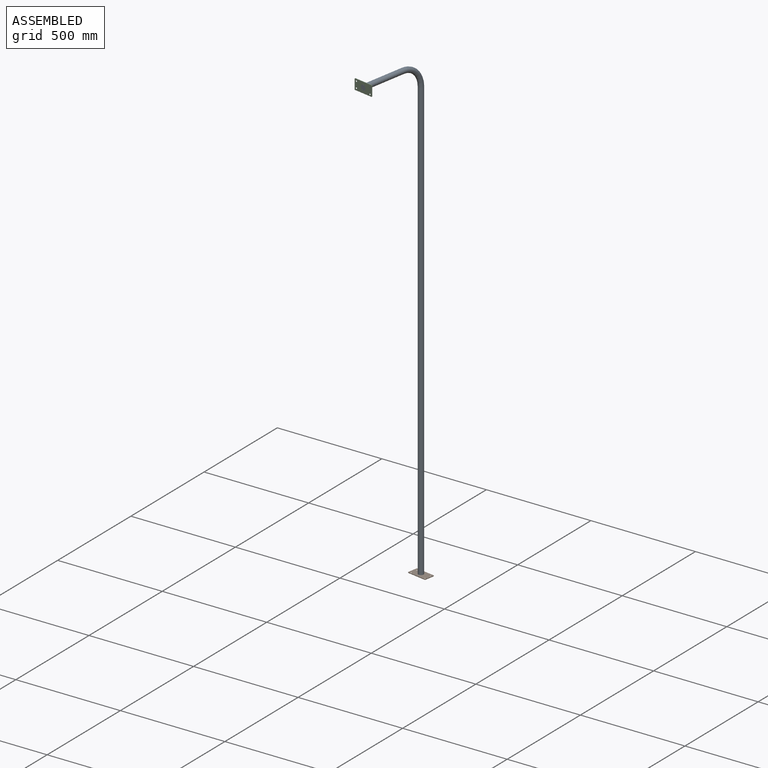
[diagram: assembled view]
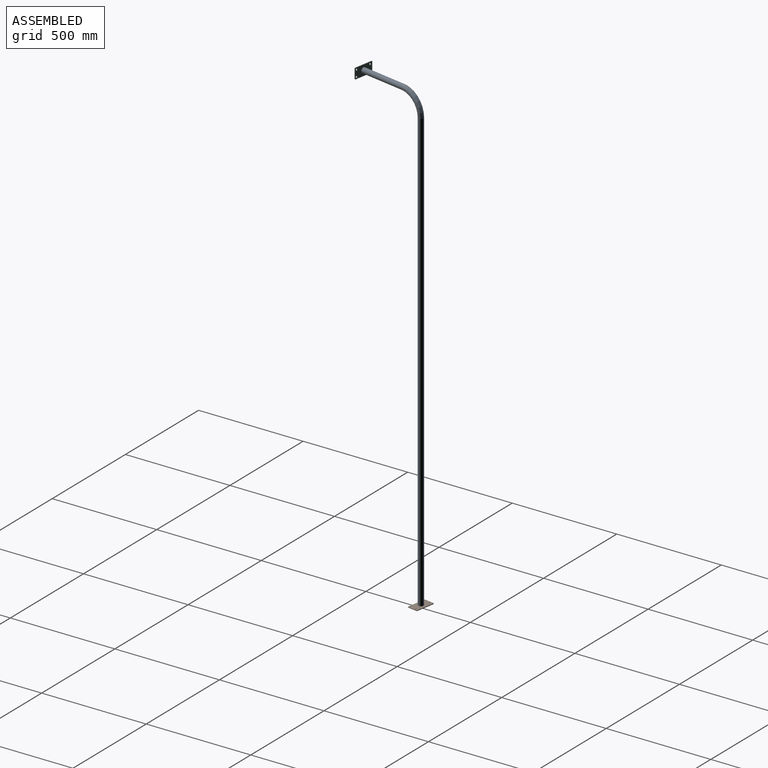
[diagram: assembled view, second angle]
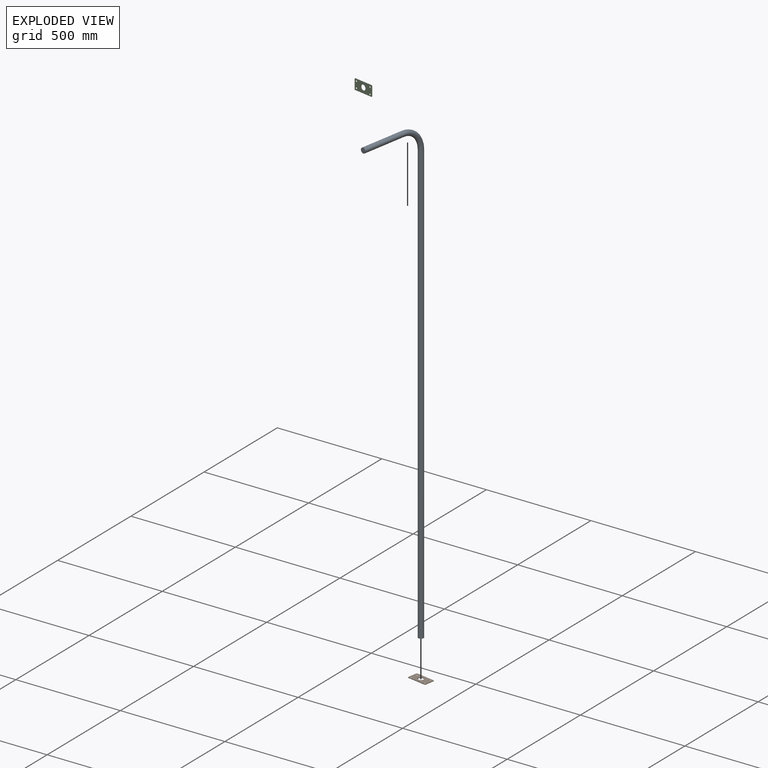
[diagram: exploded view]
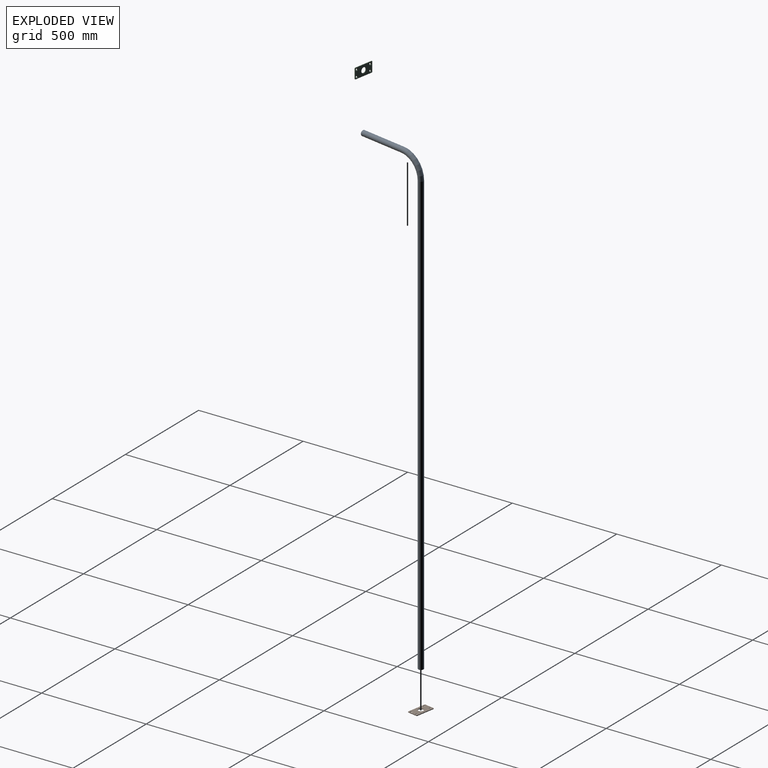
[diagram: exploded view, second angle]
ASSEMBLY  parts=3 mates=2
PART A: 5 faces, bbox 342x25.4x2232 mm
  f0: plane 25.4x25.4mm, normal (0,0,-1), area 506.7mm2, adj f2
  f1: plane 25.4x25.4mm, normal (1,0,0), area 506.7mm2, adj f4
  f2: cylinder r=12.7mm len=2110mm, axis (0,0,1), area 168370.5mm2, adj f0,f3
  f3: torus R=100mm, axis (0,1,0), area 12534.4mm2, adj f2,f4
  f4: cylinder r=12.7mm len=220mm, axis (1,0,0), area 17555.2mm2, adj f1,f3
PART B: 15 faces, bbox 95x50x3 mm
  f0: plane 44x3mm, normal (1,0,0), area 132mm2, adj f5,f6,f7,f10
  f1: plane 89x3mm, normal (0,1,0), area 267mm2, adj f5,f6,f7,f8
  f2: plane 44x3mm, normal (-1,0,0), area 132mm2, adj f5,f6,f8,f9
  f3: cylinder r=12.7mm len=25.4mm, axis (0,0,-1), area 239.4mm2, adj f5,f6
  f4: plane 89x3mm, normal (0,-1,0), area 267mm2, adj f5,f6,f9,f10
  f5: plane 95x50mm, normal (0,0,1), area 3783.2mm2, adj f0,f1,f2,f3,f4,f7,f8,f9
  f6: plane 95x50mm, normal (0,0,-1), area 4122.5mm2, adj f0,f1,f2,f3,f4,f7,f8,f9
  f7: cylinder r=3mm len=3mm, axis (0,0,1), area 14.1mm2, adj f0,f1,f5,f6
  f8: cylinder r=3mm len=3mm, axis (0,0,-1), area 14.1mm2, adj f1,f2,f5,f6
  f9: cylinder r=3mm len=3mm, axis (0,0,1), area 14.1mm2, adj f2,f4,f5,f6
  f10: cylinder r=3mm len=3mm, axis (0,0,-1), area 14.1mm2, adj f0,f4,f5,f6
  f11: cone r=3mm half-angle=45deg, axis (0,0,1), area 120mm2, adj f5,f6
  f12: cone r=3mm half-angle=45deg, axis (0,0,1), area 120mm2, adj f5,f6
  f13: cone r=3mm half-angle=45deg, axis (0,0,1), area 120mm2, adj f5,f6
  f14: cone r=3mm half-angle=45deg, axis (0,0,1), area 120mm2, adj f5,f6
PART C: same geometry as B
PLACE A rot(axis=(0,0,-1),100deg) t=(-159.05,-147.62,0)mm
PLACE B rot(axis=(0,0,1),170deg) t=(-159.05,-147.62,0)mm
PLACE C rot(axis=(-0.99,0.09,-0.09),90.4deg) t=(-214.62,-462.76,2210)mm
MATE fastened A.f4 <-> C.f3  axis (-0.17,-0.98,0) through (-214.62,-462.76,2210)mm
MATE fastened A.f2 <-> B.f3  axis (0,0,-1) through (-159.05,-147.62,0)mm
